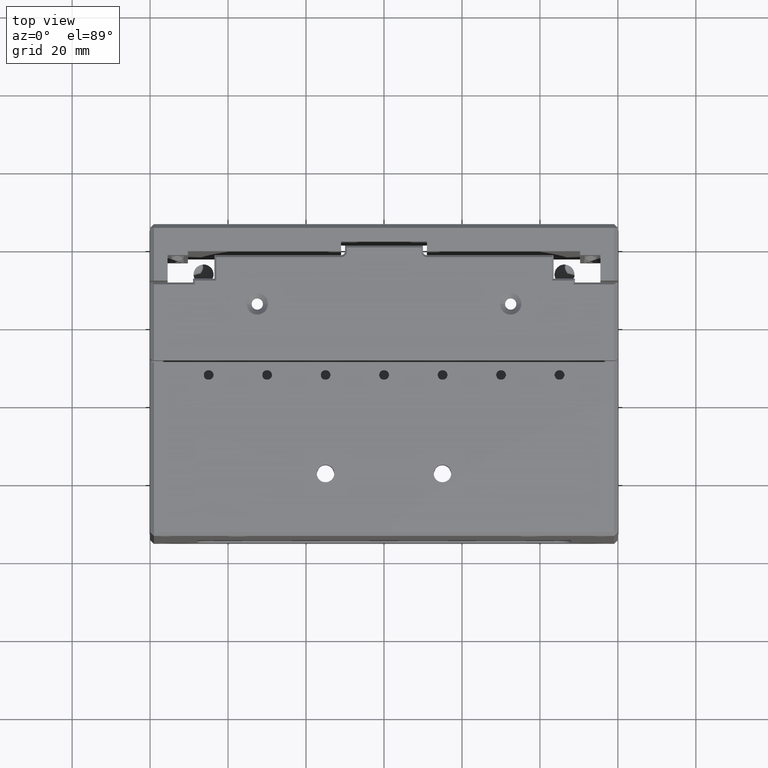
[diagram: clean part render]
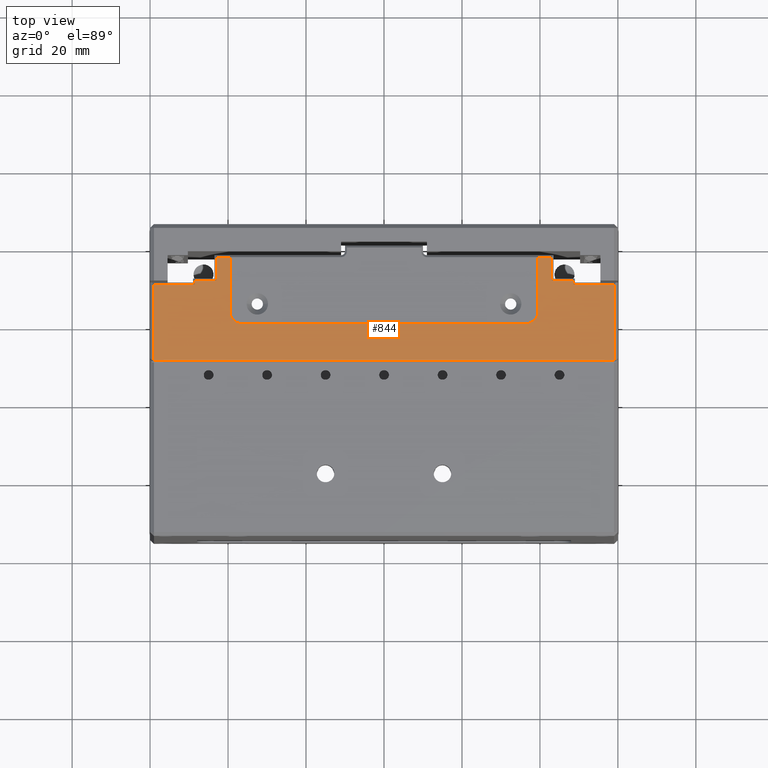
[diagram: same view with one face highlighted and labeled with its STEP entity id]
A machine part, top view. The second image highlights one B-rep face of the part: STEP entity #844.
In plain terms, the highlighted planar face has unit normal (0, 0, -1).
Its self-contained STEP definition (entity closure, byte-faithful):
#71 = CARTESIAN_POINT ( 'NONE',  ( -42.99999999999999300, 10.50000000000000000, 60.00000000000000000 ) ) ;
#94 = EDGE_CURVE ( 'NONE', #18662, #1826, #4733, .T. ) ;
#362 = VERTEX_POINT ( 'NONE', #19590 ) ;
#535 = FACE_OUTER_BOUND ( 'NONE', #9903, .T. ) ;
#541 = DIRECTION ( 'NONE',  ( 1.000000000000000000, 0.0000000000000000000, 0.0000000000000000000 ) ) ;
#589 = DIRECTION ( 'NONE',  ( -1.000000000000000000, 0.0000000000000000000, 0.0000000000000000000 ) ) ;
#844 = ADVANCED_FACE ( 'NONE', ( #535 ), #4815, .F. ) ;
#928 = VERTEX_POINT ( 'NONE', #13539 ) ;
#1439 = VERTEX_POINT ( 'NONE', #3328 ) ;
#1505 = EDGE_CURVE ( 'NONE', #15734, #362, #17279, .T. ) ;
#1517 = VECTOR ( 'NONE', #9747, 1000.000000000000000 ) ;
#1787 = ORIENTED_EDGE ( 'NONE', *, *, #94, .T. ) ;
#1826 = VERTEX_POINT ( 'NONE', #7706 ) ;
#2055 = VECTOR ( 'NONE', #16105, 1000.000000000000000 ) ;
#2063 = CARTESIAN_POINT ( 'NONE',  ( -11.00000000000000000, -0.4999999999999987200, 60.00000000000000000 ) ) ;
#2344 = VECTOR ( 'NONE', #18990, 1000.000000000000000 ) ;
#2386 = CARTESIAN_POINT ( 'NONE',  ( -59.00000000000001400, 17.00000000000000000, 60.00000000000000000 ) ) ;
#2608 = EDGE_CURVE ( 'NONE', #10749, #16300, #17928, .T. ) ;
#2627 = ORIENTED_EDGE ( 'NONE', *, *, #7511, .T. ) ;
#2780 = LINE ( 'NONE', #10489, #15434 ) ;
#3103 = ORIENTED_EDGE ( 'NONE', *, *, #5999, .T. ) ;
#3258 = ORIENTED_EDGE ( 'NONE', *, *, #17582, .T. ) ;
#3328 = CARTESIAN_POINT ( 'NONE',  ( 43.00000000000000700, 16.50000000000000000, 60.00000000000000000 ) ) ;
#3803 = CARTESIAN_POINT ( 'NONE',  ( -48.49999999999998600, 17.00000000000000000, 60.00000000000000000 ) ) ;
#3960 = VECTOR ( 'NONE', #4594, 1000.000000000000000 ) ;
#4243 = CARTESIAN_POINT ( 'NONE',  ( -59.00000000000001400, -10.00000000000000200, 60.00000000000000000 ) ) ;
#4423 = VECTOR ( 'NONE', #19606, 1000.000000000000000 ) ;
#4472 = VERTEX_POINT ( 'NONE', #17295 ) ;
#4594 = DIRECTION ( 'NONE',  ( 0.0000000000000000000, -1.000000000000000000, 0.0000000000000000000 ) ) ;
#4733 = LINE ( 'NONE', #8822, #10654 ) ;
#4743 = DIRECTION ( 'NONE',  ( -1.000000000000000000, 0.0000000000000000000, -0.0000000000000000000 ) ) ;
#4803 = LINE ( 'NONE', #3803, #13579 ) ;
#4815 = PLANE ( 'NONE',  #9915 ) ;
#5063 = EDGE_CURVE ( 'NONE', #4472, #19370, #16100, .T. ) ;
#5283 = DIRECTION ( 'NONE',  ( -1.000000000000000000, 0.0000000000000000000, 0.0000000000000000000 ) ) ;
#5304 = EDGE_CURVE ( 'NONE', #19370, #5644, #12313, .T. ) ;
#5434 = LINE ( 'NONE', #6141, #2055 ) ;
#5644 = VERTEX_POINT ( 'NONE', #11543 ) ;
#5841 = CARTESIAN_POINT ( 'NONE',  ( 43.00000000000000700, 17.00000000000000000, 60.00000000000000000 ) ) ;
#5999 = EDGE_CURVE ( 'NONE', #9298, #18662, #11107, .T. ) ;
#6141 = CARTESIAN_POINT ( 'NONE',  ( 39.49999999999999300, 10.00000000000000200, 60.00000000000000000 ) ) ;
#6168 = CARTESIAN_POINT ( 'NONE',  ( -36.49999999999999300, -0.4999999999999987200, 60.00000000000000000 ) ) ;
#6247 = CARTESIAN_POINT ( 'NONE',  ( -60.00000000000000000, 16.50000000000000000, 60.00000000000000000 ) ) ;
#6431 = CARTESIAN_POINT ( 'NONE',  ( -60.00000000000000000, 10.50000000000000000, 60.00000000000000000 ) ) ;
#6498 = DIRECTION ( 'NONE',  ( -1.000000000000000000, 0.0000000000000000000, 0.0000000000000000000 ) ) ;
#6598 = CARTESIAN_POINT ( 'NONE',  ( 58.99999999999997200, -10.00000000000000200, 60.00000000000000000 ) ) ;
#7185 = EDGE_CURVE ( 'NONE', #1826, #16887, #13454, .T. ) ;
#7280 = ORIENTED_EDGE ( 'NONE', *, *, #8976, .F. ) ;
#7359 = CARTESIAN_POINT ( 'NONE',  ( 58.99999999999997200, 9.500000000000001800, 60.00000000000000000 ) ) ;
#7414 = CARTESIAN_POINT ( 'NONE',  ( 36.49999999999999300, -0.4999999999999987200, 60.00000000000000000 ) ) ;
#7511 = EDGE_CURVE ( 'NONE', #16887, #15235, #13411, .T. ) ;
#7706 = CARTESIAN_POINT ( 'NONE',  ( 48.50000000000000000, 9.500000000000001800, 60.00000000000000000 ) ) ;
#7853 = ORIENTED_EDGE ( 'NONE', *, *, #21089, .T. ) ;
#8140 = LINE ( 'NONE', #2386, #9697 ) ;
#8201 = VECTOR ( 'NONE', #20211, 1000.000000000000000 ) ;
#8365 = CARTESIAN_POINT ( 'NONE',  ( 48.50000000000000000, 10.50000000000000000, 60.00000000000000000 ) ) ;
#8822 = CARTESIAN_POINT ( 'NONE',  ( -60.00000000000000000, 9.500000000000001800, 60.00000000000000000 ) ) ;
#8976 = EDGE_CURVE ( 'NONE', #9865, #16300, #15327, .T. ) ;
#9298 = VERTEX_POINT ( 'NONE', #6598 ) ;
#9308 = LINE ( 'NONE', #6247, #4423 ) ;
#9414 = DIRECTION ( 'NONE',  ( -1.000000000000000000, 0.0000000000000000000, 0.0000000000000000000 ) ) ;
#9697 = VECTOR ( 'NONE', #12701, 1000.000000000000000 ) ;
#9747 = DIRECTION ( 'NONE',  ( -1.000000000000000000, 0.0000000000000000000, 0.0000000000000000000 ) ) ;
#9820 = VECTOR ( 'NONE', #15544, 1000.000000000000000 ) ;
#9822 = CARTESIAN_POINT ( 'NONE',  ( -59.00000000000001400, 9.500000000000001800, 60.00000000000000000 ) ) ;
#9865 = VERTEX_POINT ( 'NONE', #6168 ) ;
#9903 = EDGE_LOOP ( 'NONE', ( #3103, #1787, #9913, #2627, #15461, #3258, #16403, #15463, #7280, #7853, #11737, #11640, #10955, #21084, #11717, #15908, #17189, #12685 ) ) ;
#9913 = ORIENTED_EDGE ( 'NONE', *, *, #7185, .T. ) ;
#9915 = AXIS2_PLACEMENT_3D ( 'NONE', #21192, #14613, #4743 ) ;
#10054 = DIRECTION ( 'NONE',  ( -1.000000000000000000, 0.0000000000000000000, 0.0000000000000000000 ) ) ;
#10341 = CARTESIAN_POINT ( 'NONE',  ( 48.50000000000000000, 17.00000000000000000, 60.00000000000000000 ) ) ;
#10489 = CARTESIAN_POINT ( 'NONE',  ( -60.00000000000000000, -10.00000000000000200, 60.00000000000000000 ) ) ;
#10654 = VECTOR ( 'NONE', #20380, 1000.000000000000000 ) ;
#10749 = VERTEX_POINT ( 'NONE', #17495 ) ;
#10777 = VERTEX_POINT ( 'NONE', #16093 ) ;
#10855 = DIRECTION ( 'NONE',  ( -1.000000000000000000, 0.0000000000000000000, 0.0000000000000000000 ) ) ;
#10955 = ORIENTED_EDGE ( 'NONE', *, *, #5063, .T. ) ;
#11107 = LINE ( 'NONE', #15936, #2344 ) ;
#11124 = EDGE_CURVE ( 'NONE', #5644, #13360, #4803, .T. ) ;
#11165 = DIRECTION ( 'NONE',  ( 0.0000000000000000000, 0.0000000000000000000, -1.000000000000000000 ) ) ;
#11543 = CARTESIAN_POINT ( 'NONE',  ( -48.49999999999998600, 10.50000000000000000, 60.00000000000000000 ) ) ;
#11640 = ORIENTED_EDGE ( 'NONE', *, *, #19281, .T. ) ;
#11708 = CARTESIAN_POINT ( 'NONE',  ( -48.99999999999998600, 10.50000000000000000, 60.00000000000000000 ) ) ;
#11717 = ORIENTED_EDGE ( 'NONE', *, *, #11124, .T. ) ;
#11737 = ORIENTED_EDGE ( 'NONE', *, *, #1505, .T. ) ;
#11758 = CARTESIAN_POINT ( 'NONE',  ( -39.49999999999999300, 10.00000000000000200, 60.00000000000000000 ) ) ;
#12157 = DIRECTION ( 'NONE',  ( 0.0000000000000000000, -1.000000000000000000, 0.0000000000000000000 ) ) ;
#12313 = LINE ( 'NONE', #11708, #15680 ) ;
#12564 = CIRCLE ( 'NONE', #17593, 3.000000000000002700 ) ;
#12685 = ORIENTED_EDGE ( 'NONE', *, *, #13285, .F. ) ;
#12701 = DIRECTION ( 'NONE',  ( 0.0000000000000000000, -1.000000000000000000, 0.0000000000000000000 ) ) ;
#12876 = CARTESIAN_POINT ( 'NONE',  ( 43.00000000000000700, 10.50000000000000000, 60.00000000000000000 ) ) ;
#12892 = VERTEX_POINT ( 'NONE', #4243 ) ;
#13285 = EDGE_CURVE ( 'NONE', #9298, #12892, #2780, .T. ) ;
#13360 = VERTEX_POINT ( 'NONE', #20235 ) ;
#13411 = LINE ( 'NONE', #6431, #1517 ) ;
#13454 = LINE ( 'NONE', #10341, #9820 ) ;
#13539 = CARTESIAN_POINT ( 'NONE',  ( -59.00000000000001400, 9.500000000000001800, 60.00000000000000000 ) ) ;
#13579 = VECTOR ( 'NONE', #12157, 1000.000000000000000 ) ;
#13781 = LINE ( 'NONE', #5841, #19459 ) ;
#14141 = DIRECTION ( 'NONE',  ( 0.0000000000000000000, 1.000000000000000000, 0.0000000000000000000 ) ) ;
#14241 = CARTESIAN_POINT ( 'NONE',  ( -36.49999999999999300, 2.500000000000001300, 60.00000000000000000 ) ) ;
#14313 = EDGE_CURVE ( 'NONE', #13360, #928, #18623, .T. ) ;
#14333 = CARTESIAN_POINT ( 'NONE',  ( 36.49999999999999300, 2.500000000000001300, 60.00000000000000000 ) ) ;
#14613 = DIRECTION ( 'NONE',  ( 0.0000000000000000000, 0.0000000000000000000, -1.000000000000000000 ) ) ;
#14653 = LINE ( 'NONE', #20804, #21387 ) ;
#15235 = VERTEX_POINT ( 'NONE', #12876 ) ;
#15236 = AXIS2_PLACEMENT_3D ( 'NONE', #14333, #11165, #9414 ) ;
#15327 = LINE ( 'NONE', #2063, #16381 ) ;
#15434 = VECTOR ( 'NONE', #589, 1000.000000000000000 ) ;
#15461 = ORIENTED_EDGE ( 'NONE', *, *, #18712, .T. ) ;
#15463 = ORIENTED_EDGE ( 'NONE', *, *, #2608, .T. ) ;
#15544 = DIRECTION ( 'NONE',  ( 0.0000000000000000000, 1.000000000000000000, 0.0000000000000000000 ) ) ;
#15680 = VECTOR ( 'NONE', #10054, 1000.000000000000000 ) ;
#15734 = VERTEX_POINT ( 'NONE', #21097 ) ;
#15908 = ORIENTED_EDGE ( 'NONE', *, *, #14313, .T. ) ;
#15936 = CARTESIAN_POINT ( 'NONE',  ( 58.99999999999997200, 17.00000000000000000, 60.00000000000000000 ) ) ;
#16093 = CARTESIAN_POINT ( 'NONE',  ( 39.49999999999999300, 16.50000000000000000, 60.00000000000000000 ) ) ;
#16100 = LINE ( 'NONE', #19177, #3960 ) ;
#16105 = DIRECTION ( 'NONE',  ( -0.0000000000000000000, 1.000000000000000000, -0.0000000000000000000 ) ) ;
#16300 = VERTEX_POINT ( 'NONE', #7414 ) ;
#16381 = VECTOR ( 'NONE', #541, 1000.000000000000000 ) ;
#16403 = ORIENTED_EDGE ( 'NONE', *, *, #19800, .F. ) ;
#16887 = VERTEX_POINT ( 'NONE', #8365 ) ;
#17189 = ORIENTED_EDGE ( 'NONE', *, *, #18022, .T. ) ;
#17279 = LINE ( 'NONE', #11758, #8201 ) ;
#17295 = CARTESIAN_POINT ( 'NONE',  ( -42.99999999999999300, 16.50000000000000000, 60.00000000000000000 ) ) ;
#17495 = CARTESIAN_POINT ( 'NONE',  ( 39.49999999999999300, 2.500000000000001300, 60.00000000000000000 ) ) ;
#17582 = EDGE_CURVE ( 'NONE', #1439, #10777, #14653, .T. ) ;
#17593 = AXIS2_PLACEMENT_3D ( 'NONE', #14241, #19665, #5283 ) ;
#17928 = CIRCLE ( 'NONE', #15236, 3.000000000000002700 ) ;
#18022 = EDGE_CURVE ( 'NONE', #928, #12892, #8140, .T. ) ;
#18623 = LINE ( 'NONE', #9822, #19888 ) ;
#18662 = VERTEX_POINT ( 'NONE', #7359 ) ;
#18712 = EDGE_CURVE ( 'NONE', #15235, #1439, #13781, .T. ) ;
#18990 = DIRECTION ( 'NONE',  ( 0.0000000000000000000, 1.000000000000000000, 0.0000000000000000000 ) ) ;
#19177 = CARTESIAN_POINT ( 'NONE',  ( -42.99999999999999300, 17.00000000000000000, 60.00000000000000000 ) ) ;
#19281 = EDGE_CURVE ( 'NONE', #362, #4472, #9308, .T. ) ;
#19370 = VERTEX_POINT ( 'NONE', #71 ) ;
#19459 = VECTOR ( 'NONE', #14141, 1000.000000000000000 ) ;
#19590 = CARTESIAN_POINT ( 'NONE',  ( -39.49999999999999300, 16.50000000000000000, 60.00000000000000000 ) ) ;
#19606 = DIRECTION ( 'NONE',  ( -1.000000000000000000, 0.0000000000000000000, 0.0000000000000000000 ) ) ;
#19665 = DIRECTION ( 'NONE',  ( 0.0000000000000000000, 0.0000000000000000000, -1.000000000000000000 ) ) ;
#19800 = EDGE_CURVE ( 'NONE', #10749, #10777, #5434, .T. ) ;
#19888 = VECTOR ( 'NONE', #6498, 1000.000000000000000 ) ;
#20211 = DIRECTION ( 'NONE',  ( -0.0000000000000000000, 1.000000000000000000, -0.0000000000000000000 ) ) ;
#20235 = CARTESIAN_POINT ( 'NONE',  ( -48.49999999999998600, 9.500000000000001800, 60.00000000000000000 ) ) ;
#20380 = DIRECTION ( 'NONE',  ( -1.000000000000000000, 0.0000000000000000000, 0.0000000000000000000 ) ) ;
#20804 = CARTESIAN_POINT ( 'NONE',  ( -60.00000000000000000, 16.50000000000000000, 60.00000000000000000 ) ) ;
#21084 = ORIENTED_EDGE ( 'NONE', *, *, #5304, .T. ) ;
#21089 = EDGE_CURVE ( 'NONE', #9865, #15734, #12564, .T. ) ;
#21097 = CARTESIAN_POINT ( 'NONE',  ( -39.49999999999999300, 2.500000000000001300, 60.00000000000000000 ) ) ;
#21192 = CARTESIAN_POINT ( 'NONE',  ( -60.00000000000000000, 17.00000000000000000, 60.00000000000000000 ) ) ;
#21387 = VECTOR ( 'NONE', #10855, 1000.000000000000000 ) ;